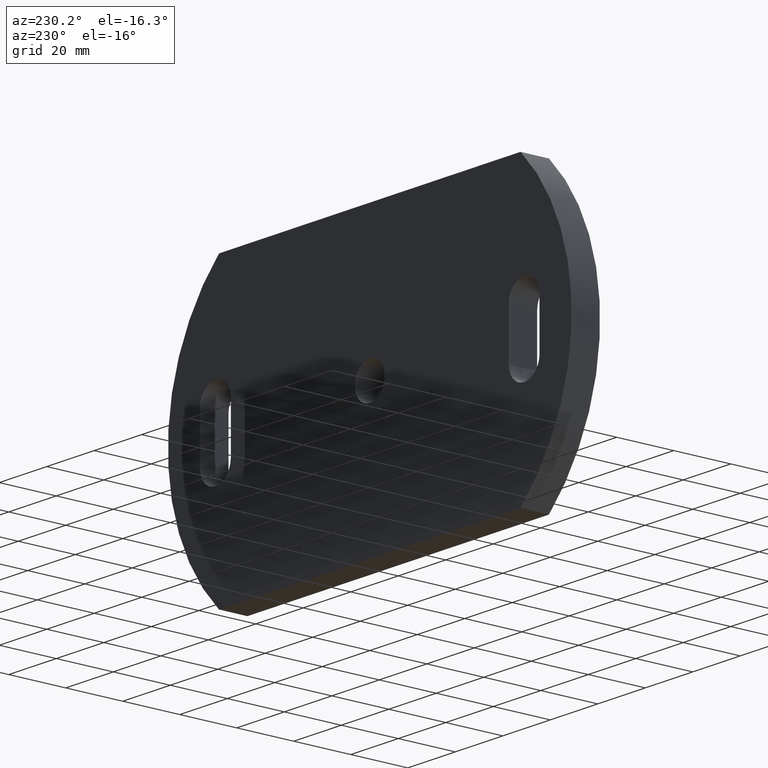
[diagram: clean part render]
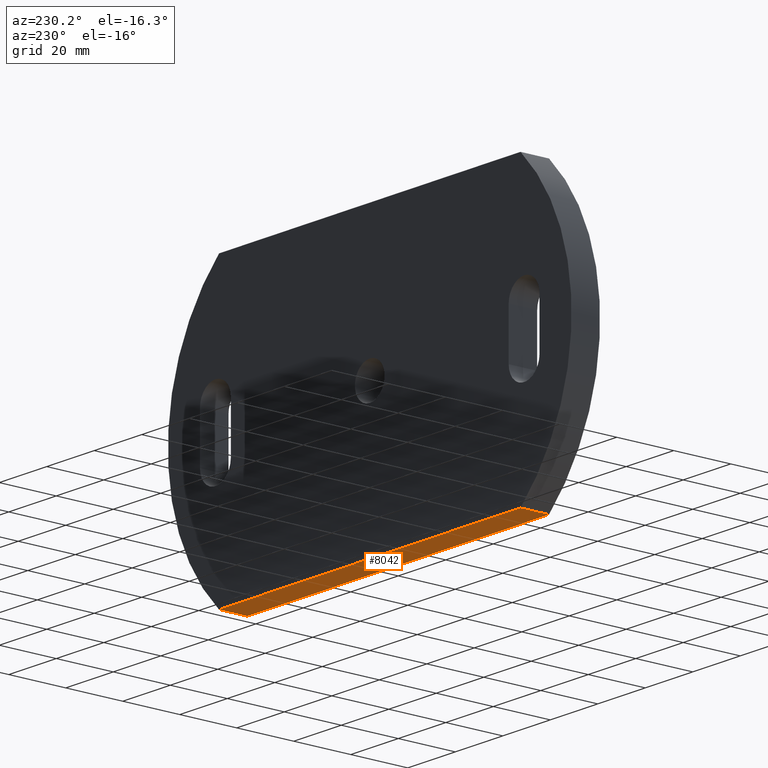
[diagram: same view with one face highlighted and labeled with its STEP entity id]
A machine part, auxiliary view. The second image highlights one B-rep face of the part: STEP entity #8042.
In plain terms, the highlighted planar face has unit normal (-0, 0, 1).
Its self-contained STEP definition (entity closure, byte-faithful):
#478 = DIRECTION ( 'NONE',  ( -0.0000000000000000000, -1.000000000000000000, -0.0000000000000000000 ) ) ;
#664 = DIRECTION ( 'NONE',  ( 1.000000000000000000, 0.0000000000000000000, 3.824587191129968500E-016 ) ) ;
#1732 = CARTESIAN_POINT ( 'NONE',  ( 63.50000000000002800, 10.00000000000000000, -49.99999999999997200 ) ) ;
#2180 = ORIENTED_EDGE ( 'NONE', *, *, #9041, .F. ) ;
#2354 = ORIENTED_EDGE ( 'NONE', *, *, #2677, .F. ) ;
#2369 = DIRECTION ( 'NONE',  ( -1.000000000000000000, -0.0000000000000000000, -3.824587191129968500E-016 ) ) ;
#2677 = EDGE_CURVE ( 'NONE', #9726, #8507, #3759, .T. ) ;
#2754 = CARTESIAN_POINT ( 'NONE',  ( -63.49999999999997200, 10.00000000000000000, -50.00000000000002800 ) ) ;
#3574 = AXIS2_PLACEMENT_3D ( 'NONE', #6579, #6614, #664 ) ;
#3759 = LINE ( 'NONE', #5118, #6358 ) ;
#4327 = LINE ( 'NONE', #7167, #5628 ) ;
#4547 = EDGE_LOOP ( 'NONE', ( #7115, #2180, #2354, #7802 ) ) ;
#4746 = VERTEX_POINT ( 'NONE', #9344 ) ;
#4921 = VECTOR ( 'NONE', #5283, 1000.000000000000000 ) ;
#5118 = CARTESIAN_POINT ( 'NONE',  ( -63.49999999999998600, 10.00000000000000000, -50.00000000000002100 ) ) ;
#5283 = DIRECTION ( 'NONE',  ( -0.0000000000000000000, -1.000000000000000000, -0.0000000000000000000 ) ) ;
#5628 = VECTOR ( 'NONE', #2369, 1000.000000000000000 ) ;
#5631 = CARTESIAN_POINT ( 'NONE',  ( 63.50000000000002800, 10.00000000000000000, -49.99999999999997200 ) ) ;
#6215 = EDGE_CURVE ( 'NONE', #4746, #9200, #4327, .T. ) ;
#6358 = VECTOR ( 'NONE', #10130, 1000.000000000000000 ) ;
#6511 = CARTESIAN_POINT ( 'NONE',  ( -63.49999999999997200, 0.0000000000000000000, -50.00000000000002800 ) ) ;
#6579 = CARTESIAN_POINT ( 'NONE',  ( -63.49999999999998600, 10.00000000000000000, -50.00000000000002100 ) ) ;
#6614 = DIRECTION ( 'NONE',  ( -3.824587191129968500E-016, 0.0000000000000000000, 1.000000000000000000 ) ) ;
#7115 = ORIENTED_EDGE ( 'NONE', *, *, #6215, .T. ) ;
#7167 = CARTESIAN_POINT ( 'NONE',  ( -63.49999999999998600, 0.0000000000000000000, -50.00000000000002100 ) ) ;
#7802 = ORIENTED_EDGE ( 'NONE', *, *, #7869, .T. ) ;
#7869 = EDGE_CURVE ( 'NONE', #9726, #4746, #10273, .T. ) ;
#8042 = ADVANCED_FACE ( 'NONE', ( #9122 ), #10699, .F. ) ;
#8507 = VERTEX_POINT ( 'NONE', #9208 ) ;
#9041 = EDGE_CURVE ( 'NONE', #8507, #9200, #9609, .T. ) ;
#9122 = FACE_OUTER_BOUND ( 'NONE', #4547, .T. ) ;
#9200 = VERTEX_POINT ( 'NONE', #6511 ) ;
#9208 = CARTESIAN_POINT ( 'NONE',  ( -63.49999999999997200, 10.00000000000000000, -50.00000000000002800 ) ) ;
#9344 = CARTESIAN_POINT ( 'NONE',  ( 63.50000000000002800, 0.0000000000000000000, -49.99999999999997200 ) ) ;
#9609 = LINE ( 'NONE', #2754, #4921 ) ;
#9726 = VERTEX_POINT ( 'NONE', #1732 ) ;
#10130 = DIRECTION ( 'NONE',  ( -1.000000000000000000, -0.0000000000000000000, -3.824587191129968500E-016 ) ) ;
#10273 = LINE ( 'NONE', #5631, #10546 ) ;
#10546 = VECTOR ( 'NONE', #478, 1000.000000000000000 ) ;
#10699 = PLANE ( 'NONE',  #3574 ) ;